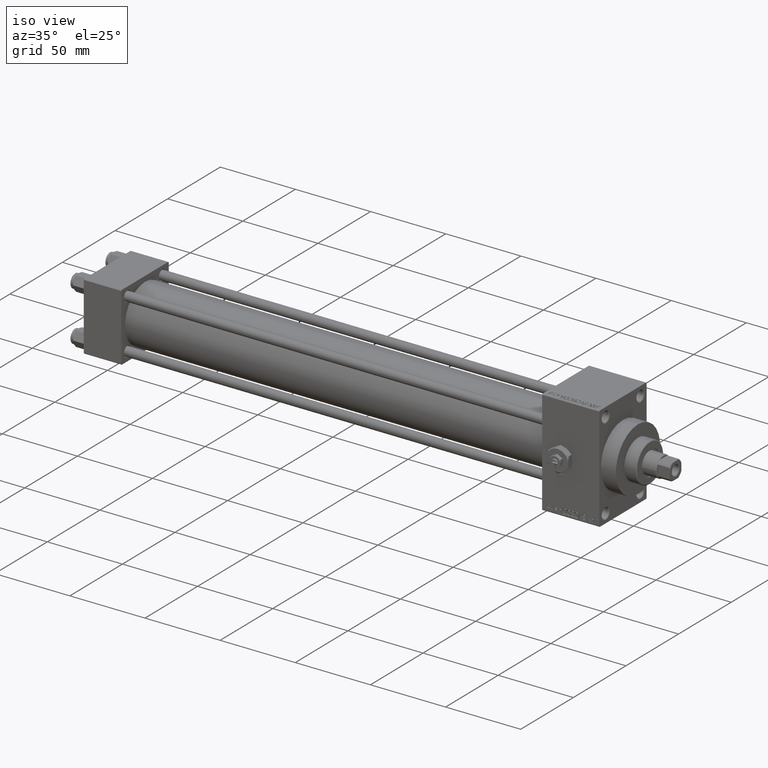
[diagram: clean part render]
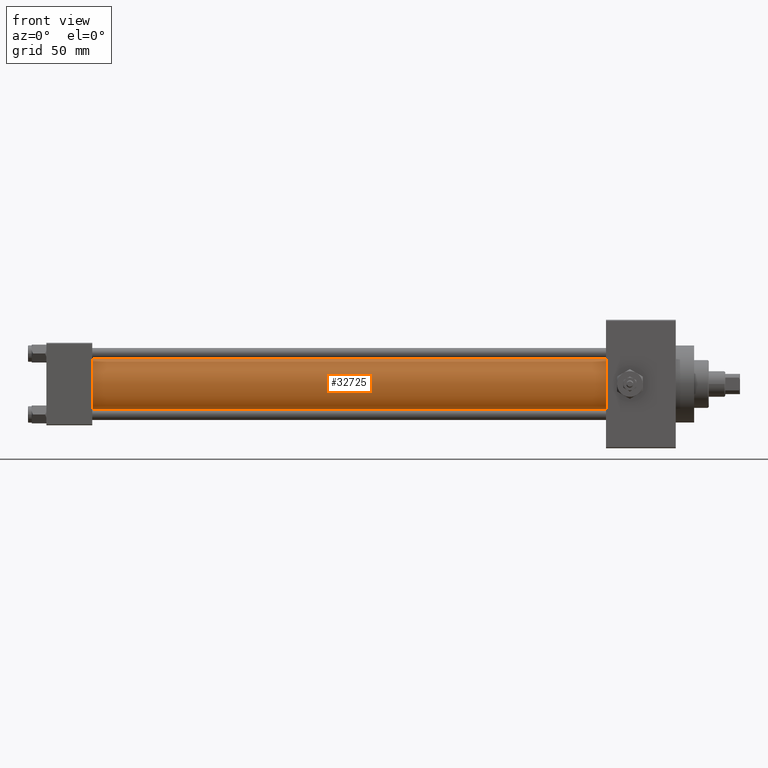
[diagram: tour spotlight — one face highlighted and labeled with its STEP entity id]
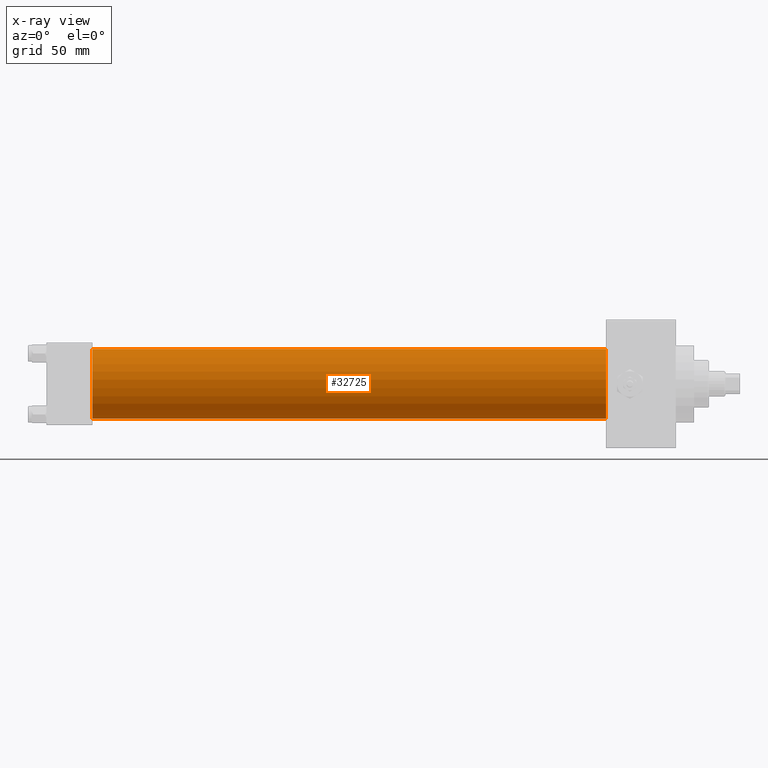
[diagram: x-ray of the same camera — body ghosted, this tour face saturated]
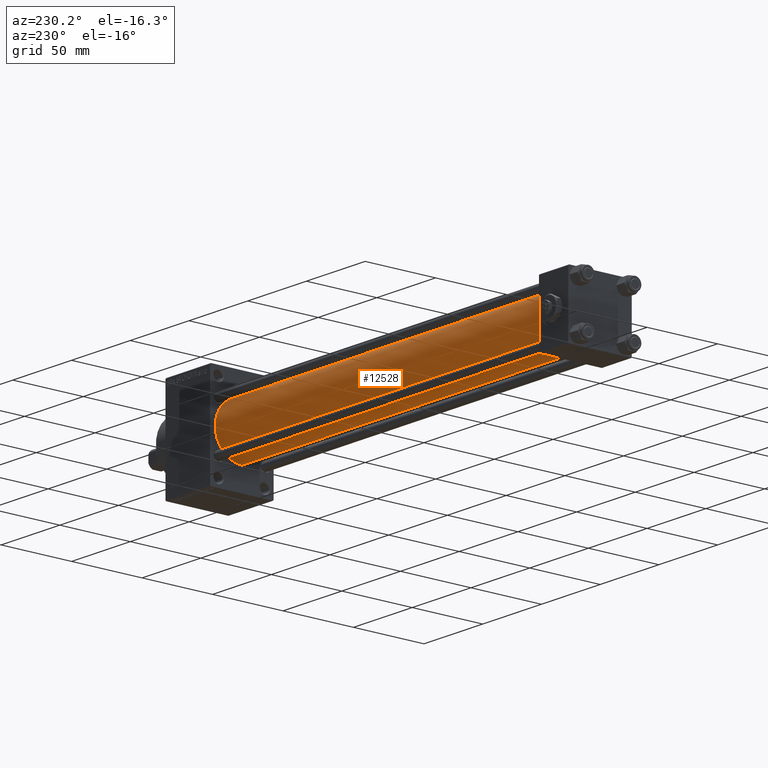
[diagram: tour spotlight — one face highlighted and labeled with its STEP entity id]
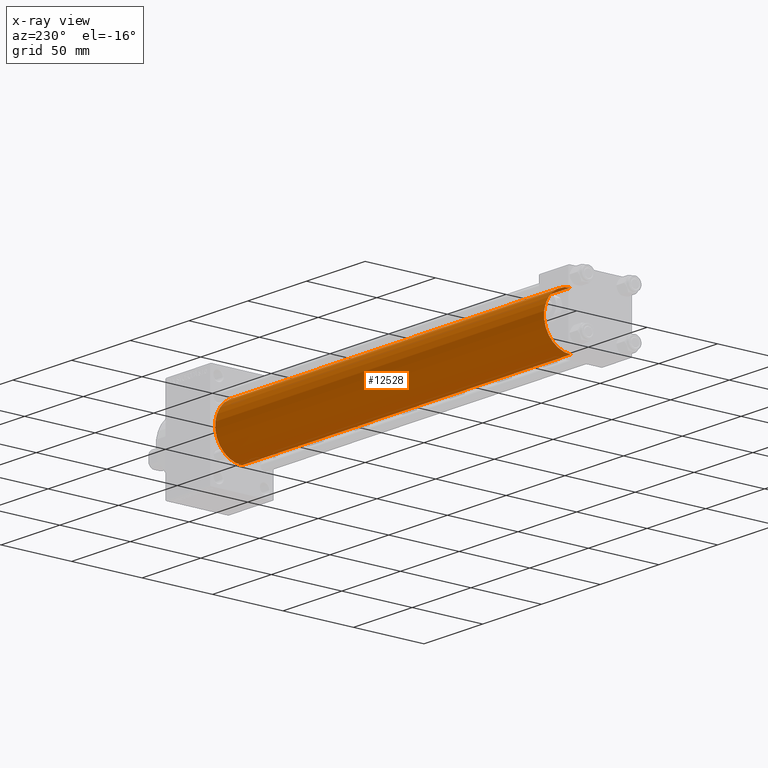
[diagram: x-ray of the same camera — body ghosted, this tour face saturated]
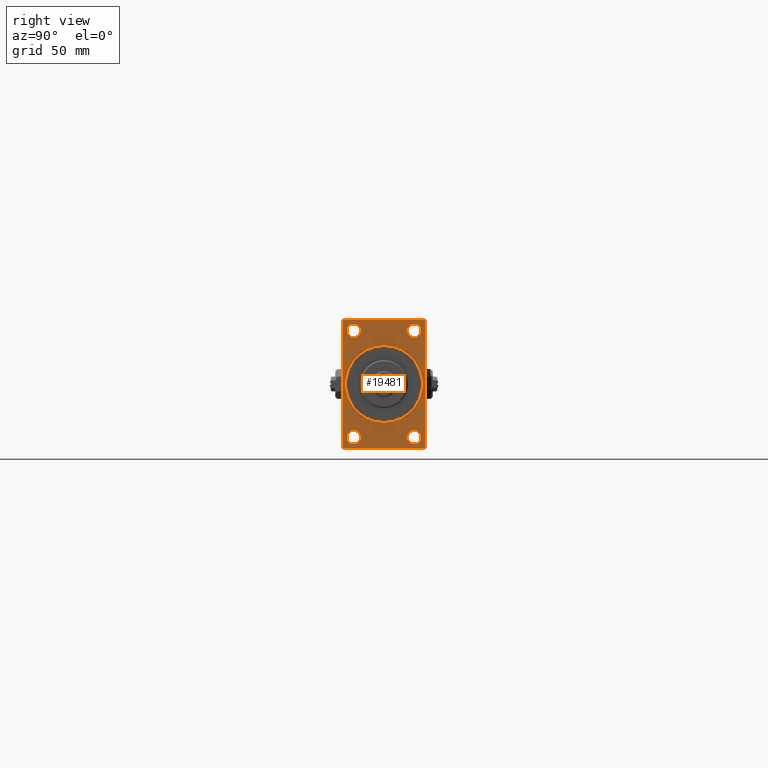
[diagram: tour spotlight — one face highlighted and labeled with its STEP entity id]
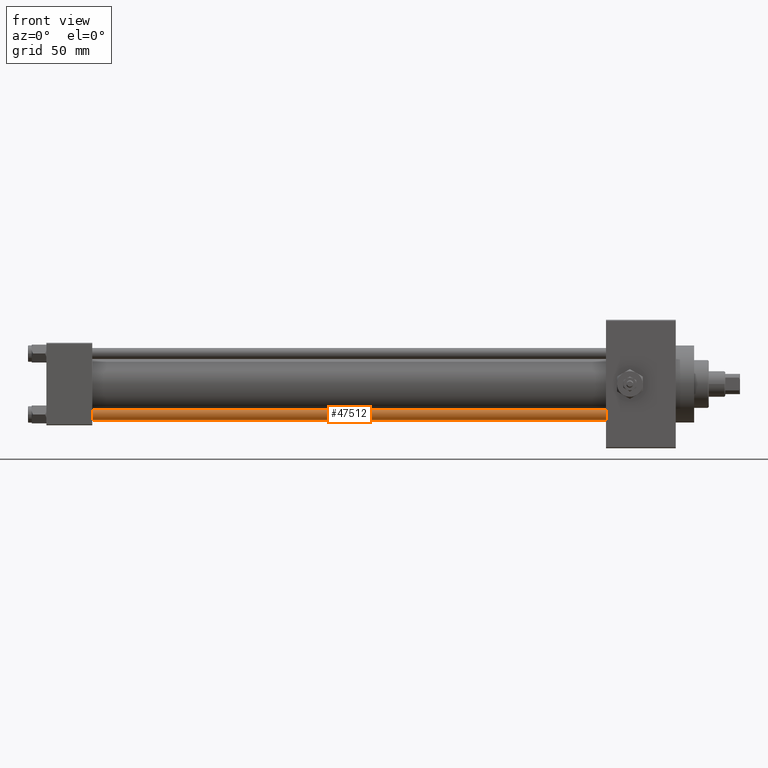
[diagram: tour spotlight — one face highlighted and labeled with its STEP entity id]
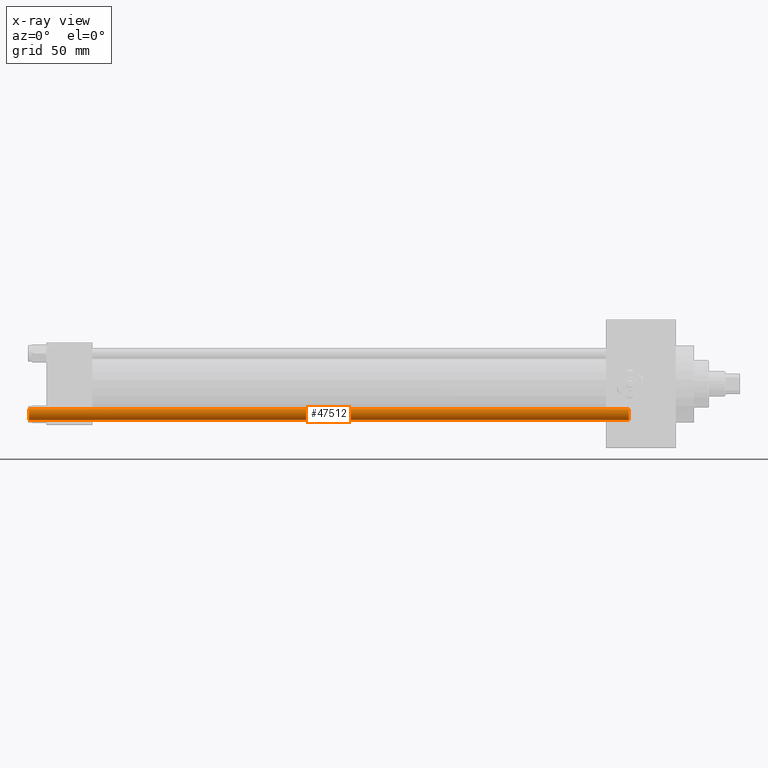
[diagram: x-ray of the same camera — body ghosted, this tour face saturated]
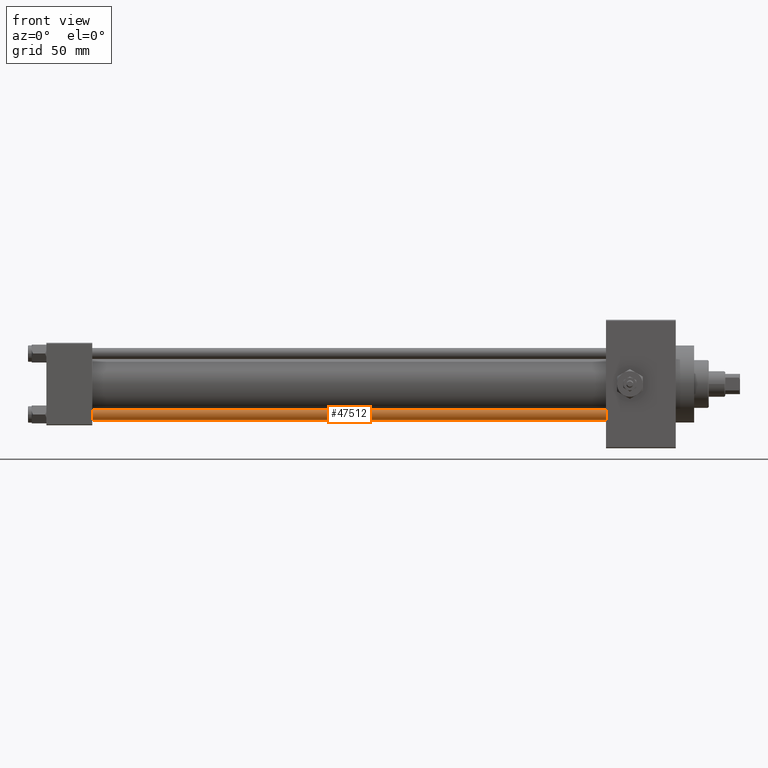
[diagram: tour spotlight — one face highlighted and labeled with its STEP entity id]
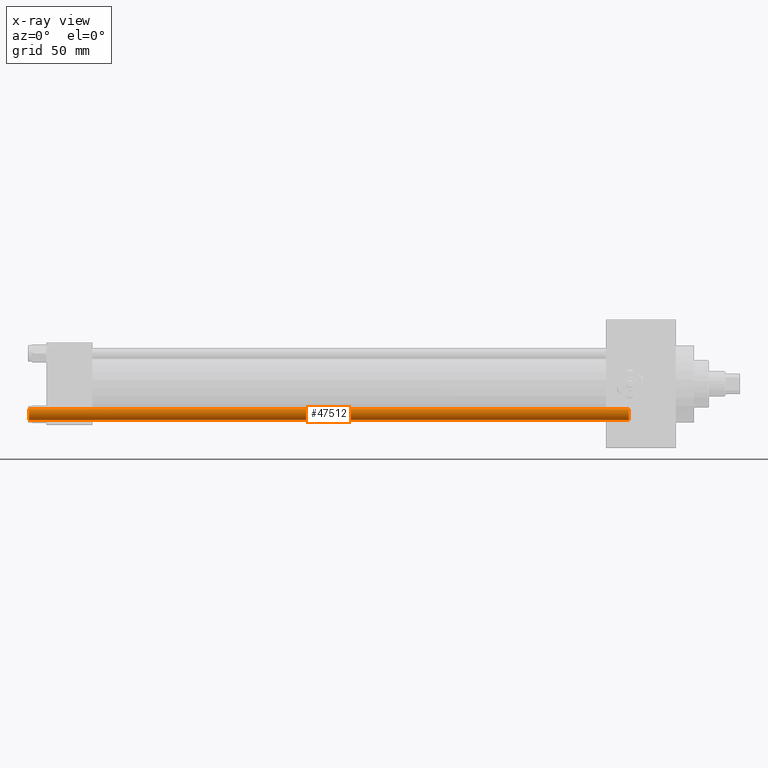
[diagram: x-ray of the same camera — body ghosted, this tour face saturated]
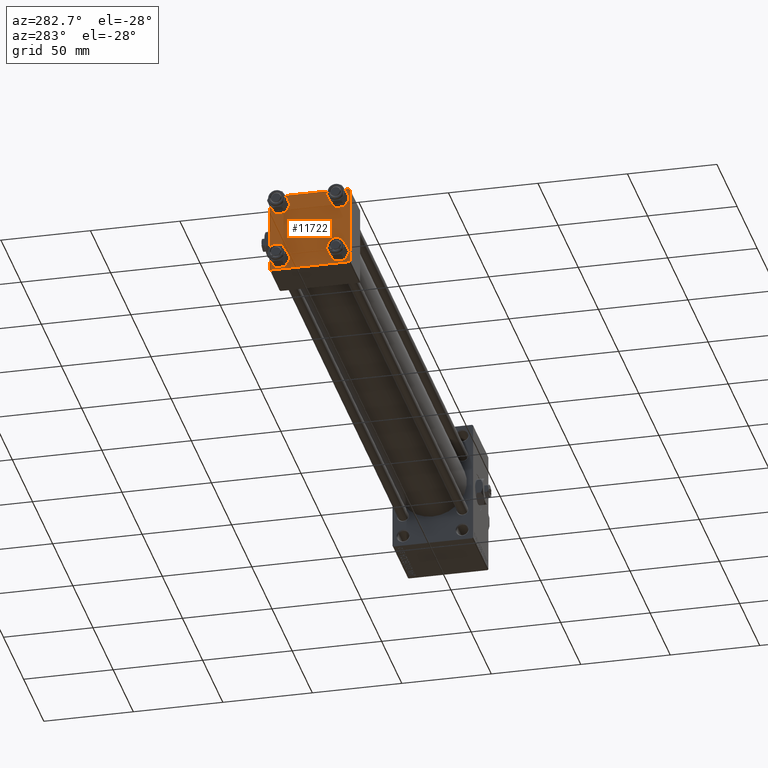
[diagram: tour spotlight — one face highlighted and labeled with its STEP entity id]
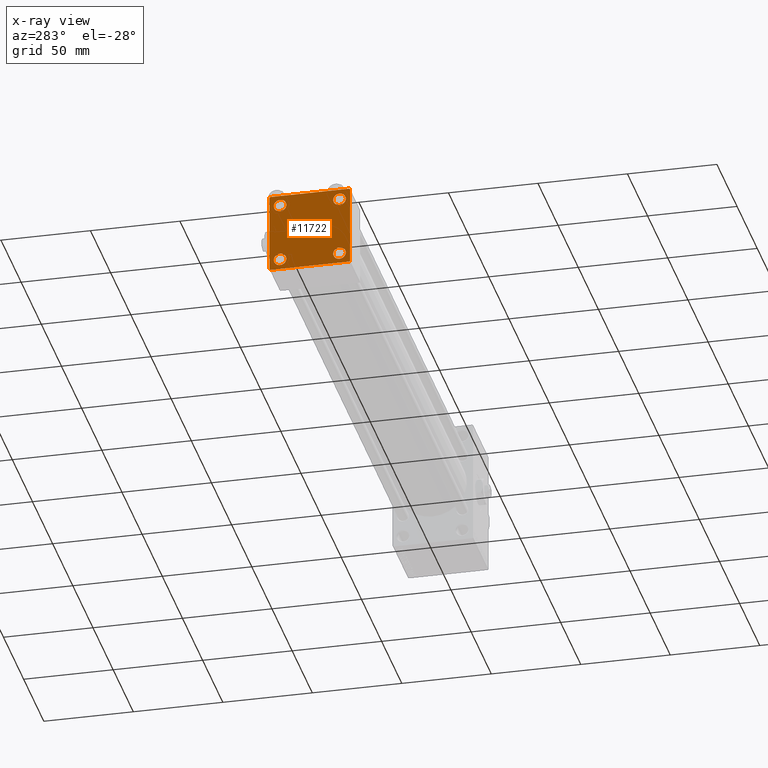
[diagram: x-ray of the same camera — body ghosted, this tour face saturated]
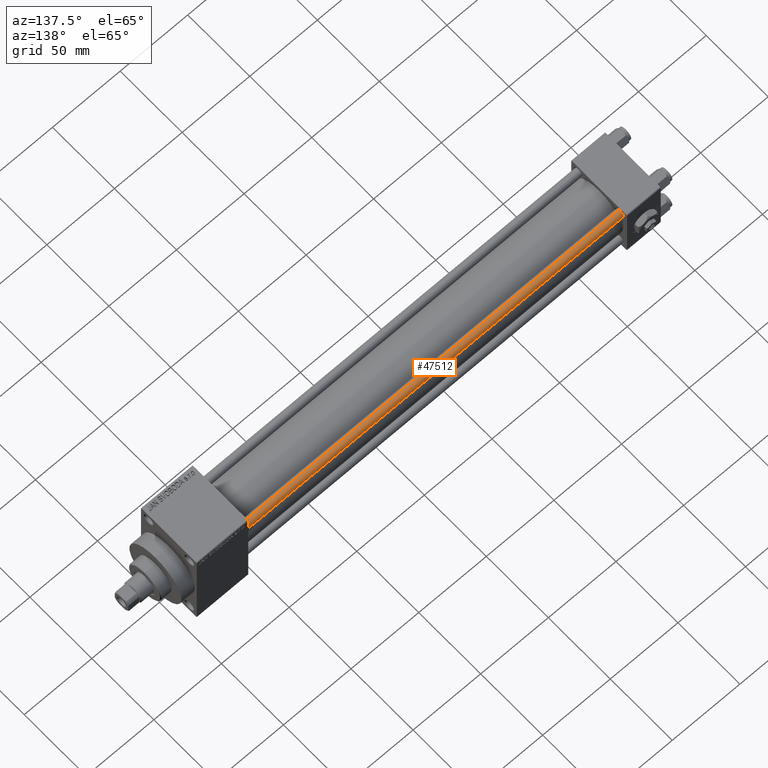
[diagram: tour spotlight — one face highlighted and labeled with its STEP entity id]
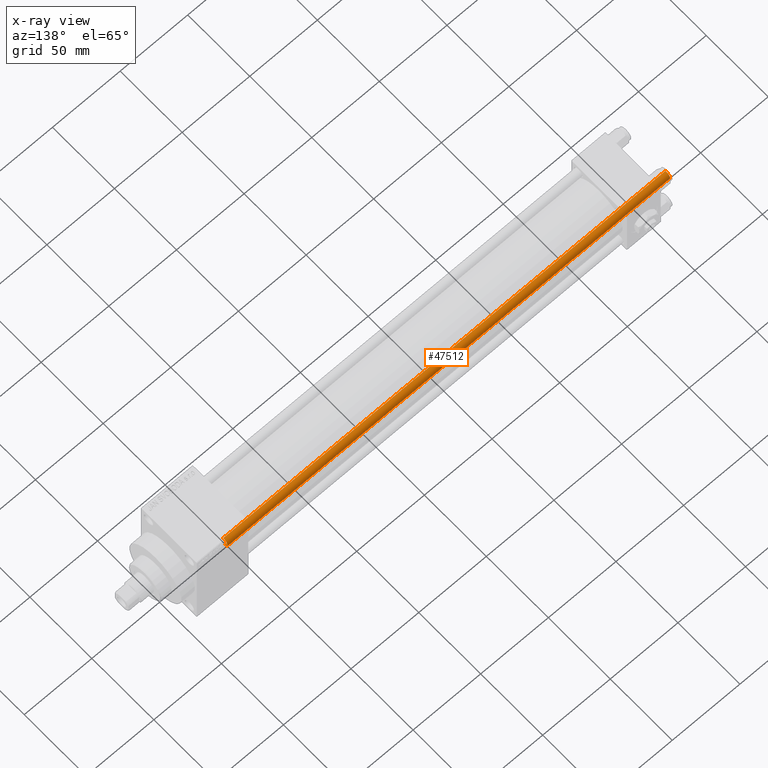
[diagram: x-ray of the same camera — body ghosted, this tour face saturated]
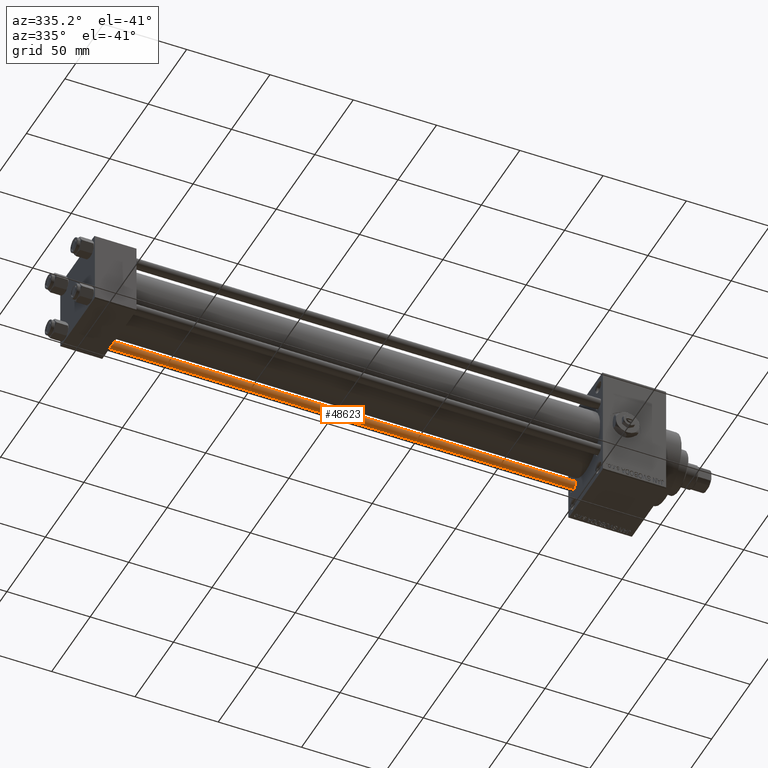
[diagram: tour spotlight — one face highlighted and labeled with its STEP entity id]
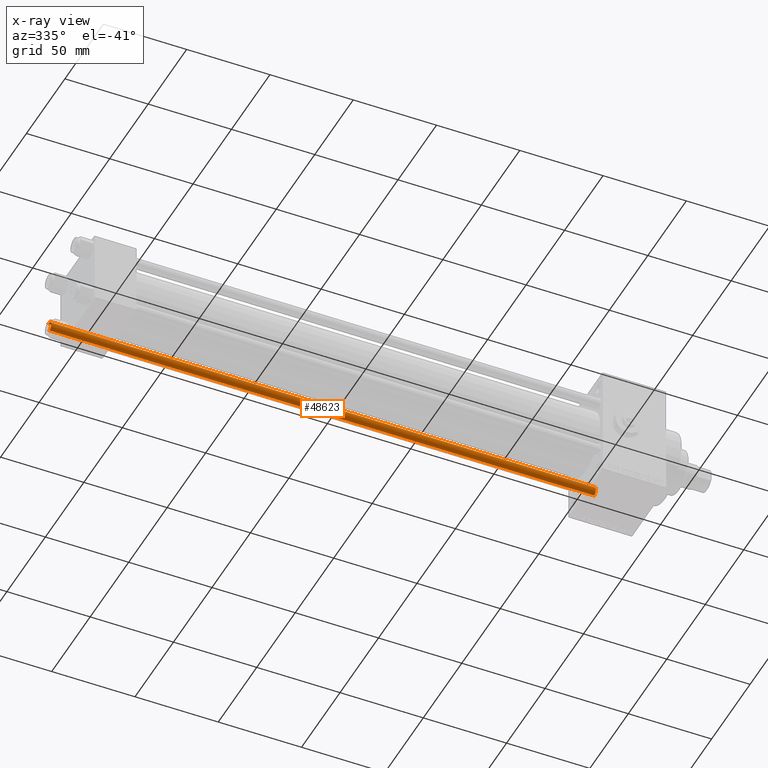
[diagram: x-ray of the same camera — body ghosted, this tour face saturated]
A machine part: a face-by-face anatomy tour. The part has 1187 B-rep faces; the first image is the clean iso view, then the 8 largest visible faces are spotlighted one at a time (largest first), each with its STEP entity span.

Face 1 — front view, entity #32725. An x-ray twin of the same camera follows (body ghosted, this face saturated) — the face is partly hidden behind the body. In plain terms, the highlighted cylindrical surface (edge-blend (fillet) strip) has radius 19 mm, axis along (-1, -0, -0).
Definition (entity closure, byte-faithful):
#694 = DIRECTION ( 'NONE',  ( 1.000000000000000000, 0.000000000000000000, 0.000000000000000000 ) ) ;
#1963 = DIRECTION ( 'NONE',  ( 0.000000000000000000, 0.000000000000000000, 1.000000000000000000 ) ) ;
#2403 = DIRECTION ( 'NONE',  ( 1.000000000000000000, -0.000000000000000000, 0.000000000000000000 ) ) ;
#3237 = EDGE_CURVE ( 'NONE', #39846, #39928, #31404, .T. ) ;
#6050 = VECTOR ( 'NONE', #23933, 1000.000000000000000 ) ;
#7245 = LINE ( 'NONE', #10673, #9520 ) ;
#7747 = ORIENTED_EDGE ( 'NONE', *, *, #15088, .F. ) ;
#8526 = AXIS2_PLACEMENT_3D ( 'NONE', #30652, #694, #8779 ) ;
#8779 = DIRECTION ( 'NONE',  ( 0.000000000000000000, 0.000000000000000000, -1.000000000000000000 ) ) ;
#8835 = FACE_OUTER_BOUND ( 'NONE', #46988, .T. ) ;
#9520 = VECTOR ( 'NONE', #25197, 1000.000000000000000 ) ;
#9562 = CARTESIAN_POINT ( 'NONE',  ( 305.0000000000000568, -2.602085213965210642E-15, 0.000000000000000000 ) ) ;
#9920 = LINE ( 'NONE', #35476, #6050 ) ;
#10673 = CARTESIAN_POINT ( 'NONE',  ( 305.0000000000000568, -2.752562955852396712E-16, -19.00000000000000000 ) ) ;
#15088 = EDGE_CURVE ( 'NONE', #35049, #39928, #7245, .T. ) ;
#17376 = DIRECTION ( 'NONE',  ( 0.000000000000000000, 0.000000000000000000, 1.000000000000000000 ) ) ;
#18401 = VERTEX_POINT ( 'NONE', #42076 ) ;
#19656 = DIRECTION ( 'NONE',  ( -1.000000000000000000, -0.000000000000000000, -0.000000000000000000 ) ) ;
#22654 = CIRCLE ( 'NONE', #8526, 19.00000000000000000 ) ;
#23157 = CARTESIAN_POINT ( 'NONE',  ( 25.00000000000002132, -2.602085213965210642E-15, 19.00000000000000000 ) ) ;
#23933 = DIRECTION ( 'NONE',  ( -1.000000000000000000, -0.000000000000000000, -0.000000000000000000 ) ) ;
#25197 = DIRECTION ( 'NONE',  ( -1.000000000000000000, -0.000000000000000000, -0.000000000000000000 ) ) ;
#30529 = ORIENTED_EDGE ( 'NONE', *, *, #35661, .F. ) ;
#30652 = CARTESIAN_POINT ( 'NONE',  ( 305.0000000000000568, -2.602085213965210642E-15, 0.000000000000000000 ) ) ;
#31404 = CIRCLE ( 'NONE', #32219, 19.00000000000000000 ) ;
#31985 = CARTESIAN_POINT ( 'NONE',  ( 25.00000000000002132, -2.752562955852396712E-16, -19.00000000000000000 ) ) ;
#32163 = EDGE_CURVE ( 'NONE', #18401, #39846, #9920, .T. ) ;
#32219 = AXIS2_PLACEMENT_3D ( 'NONE', #36036, #2403, #17376 ) ;
#32725 = ADVANCED_FACE ( 'NONE', ( #8835 ), #35106, .T. ) ;
#33985 = ORIENTED_EDGE ( 'NONE', *, *, #32163, .T. ) ;
#35049 = VERTEX_POINT ( 'NONE', #40937 ) ;
#35106 = CYLINDRICAL_SURFACE ( 'NONE', #47649, 19.00000000000000000 ) ;
#35476 = CARTESIAN_POINT ( 'NONE',  ( 305.0000000000000568, -2.602085213965210642E-15, 19.00000000000000000 ) ) ;
#35661 = EDGE_CURVE ( 'NONE', #18401, #35049, #22654, .T. ) ;
#36036 = CARTESIAN_POINT ( 'NONE',  ( 25.00000000000002132, -2.602085213965210642E-15, 0.000000000000000000 ) ) ;
#38311 = ORIENTED_EDGE ( 'NONE', *, *, #3237, .T. ) ;
#39846 = VERTEX_POINT ( 'NONE', #23157 ) ;
#39928 = VERTEX_POINT ( 'NONE', #31985 ) ;
#40937 = CARTESIAN_POINT ( 'NONE',  ( 305.0000000000000568, -2.752562955852396712E-16, -19.00000000000000000 ) ) ;
#42076 = CARTESIAN_POINT ( 'NONE',  ( 305.0000000000000568, -2.602085213965210642E-15, 19.00000000000000000 ) ) ;
#46988 = EDGE_LOOP ( 'NONE', ( #7747, #30529, #33985, #38311 ) ) ;
#47649 = AXIS2_PLACEMENT_3D ( 'NONE', #9562, #19656, #1963 ) ;

Face 2 — auxiliary view, entity #12528. An x-ray twin of the same camera follows (body ghosted, this face saturated) — the face is partly hidden behind the body. In plain terms, the highlighted cylindrical surface (edge-blend (fillet) strip) has radius 19 mm, axis along (-1, -0, -0).
Definition (entity closure, byte-faithful):
#671 = CIRCLE ( 'NONE', #36745, 19.00000000000000000 ) ;
#1087 = ORIENTED_EDGE ( 'NONE', *, *, #42976, .T. ) ;
#3450 = FACE_OUTER_BOUND ( 'NONE', #6060, .T. ) ;
#4730 = AXIS2_PLACEMENT_3D ( 'NONE', #44468, #10795, #41506 ) ;
#6050 = VECTOR ( 'NONE', #23933, 1000.000000000000000 ) ;
#6060 = EDGE_LOOP ( 'NONE', ( #48203, #32821, #1087, #41256 ) ) ;
#7245 = LINE ( 'NONE', #10673, #9520 ) ;
#7304 = EDGE_CURVE ( 'NONE', #35049, #18401, #32979, .T. ) ;
#9520 = VECTOR ( 'NONE', #25197, 1000.000000000000000 ) ;
#9920 = LINE ( 'NONE', #35476, #6050 ) ;
#10673 = CARTESIAN_POINT ( 'NONE',  ( 305.0000000000000568, -2.752562955852396712E-16, -19.00000000000000000 ) ) ;
#10795 = DIRECTION ( 'NONE',  ( -1.000000000000000000, -0.000000000000000000, -0.000000000000000000 ) ) ;
#12528 = ADVANCED_FACE ( 'NONE', ( #3450 ), #44715, .T. ) ;
#13374 = CARTESIAN_POINT ( 'NONE',  ( 305.0000000000000568, -2.602085213965210642E-15, 0.000000000000000000 ) ) ;
#15088 = EDGE_CURVE ( 'NONE', #35049, #39928, #7245, .T. ) ;
#18401 = VERTEX_POINT ( 'NONE', #42076 ) ;
#22690 = CARTESIAN_POINT ( 'NONE',  ( 25.00000000000002132, -2.602085213965210642E-15, 0.000000000000000000 ) ) ;
#23157 = CARTESIAN_POINT ( 'NONE',  ( 25.00000000000002132, -2.602085213965210642E-15, 19.00000000000000000 ) ) ;
#23933 = DIRECTION ( 'NONE',  ( -1.000000000000000000, -0.000000000000000000, -0.000000000000000000 ) ) ;
#25131 = AXIS2_PLACEMENT_3D ( 'NONE', #13374, #35474, #39659 ) ;
#25197 = DIRECTION ( 'NONE',  ( -1.000000000000000000, -0.000000000000000000, -0.000000000000000000 ) ) ;
#31985 = CARTESIAN_POINT ( 'NONE',  ( 25.00000000000002132, -2.752562955852396712E-16, -19.00000000000000000 ) ) ;
#32163 = EDGE_CURVE ( 'NONE', #18401, #39846, #9920, .T. ) ;
#32821 = ORIENTED_EDGE ( 'NONE', *, *, #15088, .T. ) ;
#32979 = CIRCLE ( 'NONE', #25131, 19.00000000000000000 ) ;
#33272 = DIRECTION ( 'NONE',  ( 0.000000000000000000, 0.000000000000000000, 1.000000000000000000 ) ) ;
#35049 = VERTEX_POINT ( 'NONE', #40937 ) ;
#35474 = DIRECTION ( 'NONE',  ( 1.000000000000000000, 0.000000000000000000, 0.000000000000000000 ) ) ;
#35476 = CARTESIAN_POINT ( 'NONE',  ( 305.0000000000000568, -2.602085213965210642E-15, 19.00000000000000000 ) ) ;
#36745 = AXIS2_PLACEMENT_3D ( 'NONE', #22690, #40643, #33272 ) ;
#39659 = DIRECTION ( 'NONE',  ( 0.000000000000000000, 0.000000000000000000, -1.000000000000000000 ) ) ;
#39846 = VERTEX_POINT ( 'NONE', #23157 ) ;
#39928 = VERTEX_POINT ( 'NONE', #31985 ) ;
#40643 = DIRECTION ( 'NONE',  ( 1.000000000000000000, -0.000000000000000000, 0.000000000000000000 ) ) ;
#40937 = CARTESIAN_POINT ( 'NONE',  ( 305.0000000000000568, -2.752562955852396712E-16, -19.00000000000000000 ) ) ;
#41256 = ORIENTED_EDGE ( 'NONE', *, *, #32163, .F. ) ;
#41506 = DIRECTION ( 'NONE',  ( 0.000000000000000000, 0.000000000000000000, 1.000000000000000000 ) ) ;
#42076 = CARTESIAN_POINT ( 'NONE',  ( 305.0000000000000568, -2.602085213965210642E-15, 19.00000000000000000 ) ) ;
#42976 = EDGE_CURVE ( 'NONE', #39928, #39846, #671, .T. ) ;
#44468 = CARTESIAN_POINT ( 'NONE',  ( 305.0000000000000568, -2.602085213965210642E-15, 0.000000000000000000 ) ) ;
#44715 = CYLINDRICAL_SURFACE ( 'NONE', #4730, 19.00000000000000000 ) ;
#48203 = ORIENTED_EDGE ( 'NONE', *, *, #7304, .F. ) ;

Face 3 — right view, entity #19481. In plain terms, the highlighted planar face has unit normal (-1, 0, 0).
Definition (entity closure, byte-faithful):
#880 = AXIS2_PLACEMENT_3D ( 'NONE', #35070, #38279, #45431 ) ;
#1050 = CIRCLE ( 'NONE', #45754, 3.750000000000027534 ) ;
#1054 = VERTEX_POINT ( 'NONE', #6635 ) ;
#1656 = ORIENTED_EDGE ( 'NONE', *, *, #45070, .T. ) ;
#1947 = CARTESIAN_POINT ( 'NONE',  ( 343.0000000000000000, 16.50000000000000000, -28.99999999999999289 ) ) ;
#3281 = LINE ( 'NONE', #48247, #39263 ) ;
#3961 = CARTESIAN_POINT ( 'NONE',  ( 343.0000000000000000, 16.50000000000000000, -32.75000000000002842 ) ) ;
#4307 = VERTEX_POINT ( 'NONE', #44204 ) ;
#4344 = PLANE ( 'NONE',  #46530 ) ;
#4588 = FACE_BOUND ( 'NONE', #19979, .T. ) ;
#4998 = DIRECTION ( 'NONE',  ( -1.000000000000000000, -0.000000000000000000, -0.000000000000000000 ) ) ;
#5166 = EDGE_LOOP ( 'NONE', ( #6978, #29847 ) ) ;
#5362 = AXIS2_PLACEMENT_3D ( 'NONE', #43029, #39093, #32210 ) ;
#5996 = ORIENTED_EDGE ( 'NONE', *, *, #46786, .F. ) ;
#6110 = VECTOR ( 'NONE', #41426, 1000.000000000000000 ) ;
#6347 = DIRECTION ( 'NONE',  ( 1.000000000000000000, 0.000000000000000000, 0.000000000000000000 ) ) ;
#6367 = DIRECTION ( 'NONE',  ( -1.000000000000000000, -0.000000000000000000, -0.000000000000000000 ) ) ;
#6635 = CARTESIAN_POINT ( 'NONE',  ( 343.0000000000000000, 0.000000000000000000, 21.00000000000000000 ) ) ;
#6670 = EDGE_CURVE ( 'NONE', #44421, #29078, #3281, .T. ) ;
#6978 = ORIENTED_EDGE ( 'NONE', *, *, #40744, .T. ) ;
#7195 = CARTESIAN_POINT ( 'NONE',  ( 343.0000000000000000, 22.49999999999999645, -34.49999999999995026 ) ) ;
#7797 = VERTEX_POINT ( 'NONE', #21638 ) ;
#8246 = LINE ( 'NONE', #34531, #6110 ) ;
#8498 = DIRECTION ( 'NONE',  ( -1.000000000000000000, 0.000000000000000000, -0.000000000000000000 ) ) ;
#8810 = ORIENTED_EDGE ( 'NONE', *, *, #36283, .F. ) ;
#9467 = ORIENTED_EDGE ( 'NONE', *, *, #6670, .T. ) ;
#10499 = DIRECTION ( 'NONE',  ( 0.000000000000000000, 0.000000000000000000, -1.000000000000000000 ) ) ;
#10677 = EDGE_CURVE ( 'NONE', #34449, #28813, #47377, .T. ) ;
#12016 = VERTEX_POINT ( 'NONE', #24944 ) ;
#12365 = AXIS2_PLACEMENT_3D ( 'NONE', #42402, #45362, #45123 ) ;
#12673 = VECTOR ( 'NONE', #22031, 1000.000000000000114 ) ;
#13208 = CIRCLE ( 'NONE', #5362, 21.00000000000000000 ) ;
#13535 = VERTEX_POINT ( 'NONE', #37068 ) ;
#14144 = EDGE_CURVE ( 'NONE', #33795, #14619, #48455, .T. ) ;
#14619 = VERTEX_POINT ( 'NONE', #26991 ) ;
#14653 = EDGE_CURVE ( 'NONE', #37790, #28742, #37755, .T. ) ;
#15156 = CARTESIAN_POINT ( 'NONE',  ( 343.0000000000000000, -16.50000000000000000, -32.75000000000002842 ) ) ;
#15270 = AXIS2_PLACEMENT_3D ( 'NONE', #48025, #44549, #29089 ) ;
#15486 = EDGE_LOOP ( 'NONE', ( #5996, #17238 ) ) ;
#15661 = ORIENTED_EDGE ( 'NONE', *, *, #41240, .T. ) ;
#15880 = FACE_BOUND ( 'NONE', #5166, .T. ) ;
#16364 = CARTESIAN_POINT ( 'NONE',  ( 343.0000000000000000, -22.50000000000000355, 34.49999999999995026 ) ) ;
#16876 = DIRECTION ( 'NONE',  ( 0.000000000000000000, 0.000000000000000000, 1.000000000000000000 ) ) ;
#17155 = VECTOR ( 'NONE', #28562, 1000.000000000000000 ) ;
#17238 = ORIENTED_EDGE ( 'NONE', *, *, #22148, .F. ) ;
#17254 = LINE ( 'NONE', #47253, #17155 ) ;
#17371 = EDGE_LOOP ( 'NONE', ( #23520, #26143, #21955, #42921, #8810, #15661, #9467, #1656 ) ) ;
#17624 = CARTESIAN_POINT ( 'NONE',  ( 343.0000000000000000, 0.000000000000000000, 0.000000000000000000 ) ) ;
#17736 = VERTEX_POINT ( 'NONE', #25234 ) ;
#17831 = DIRECTION ( 'NONE',  ( -1.000000000000000000, -0.000000000000000000, -0.000000000000000000 ) ) ;
#17885 = VECTOR ( 'NONE', #24213, 1000.000000000000114 ) ;
#18426 = AXIS2_PLACEMENT_3D ( 'NONE', #1947, #6367, #21336 ) ;
#18938 = EDGE_CURVE ( 'NONE', #17736, #4307, #1050, .T. ) ;
#19138 = AXIS2_PLACEMENT_3D ( 'NONE', #21038, #17831, #39233 ) ;
#19418 = VECTOR ( 'NONE', #29713, 1000.000000000000114 ) ;
#19481 = ADVANCED_FACE ( 'NONE', ( #45137, #38226, #4588, #15880, #19563, #23000 ), #4344, .F. ) ;
#19563 = FACE_BOUND ( 'NONE', #15486, .T. ) ;
#19979 = EDGE_LOOP ( 'NONE', ( #29624, #45104 ) ) ;
#20031 = VERTEX_POINT ( 'NONE', #27737 ) ;
#20109 = CARTESIAN_POINT ( 'NONE',  ( 343.0000000000000000, -22.50000000000000355, 34.49999999999995026 ) ) ;
#21038 = CARTESIAN_POINT ( 'NONE',  ( 343.0000000000000000, 16.50000000000000000, 29.00000000000000355 ) ) ;
#21189 = EDGE_CURVE ( 'NONE', #12016, #13535, #47389, .T. ) ;
#21336 = DIRECTION ( 'NONE',  ( 0.000000000000000000, 0.000000000000000000, 1.000000000000000000 ) ) ;
#21638 = CARTESIAN_POINT ( 'NONE',  ( 343.0000000000000000, 16.50000000000000000, -25.24999999999996447 ) ) ;
#21675 = CARTESIAN_POINT ( 'NONE',  ( 343.0000000000000000, -16.50000000000000000, -25.24999999999996447 ) ) ;
#21955 = ORIENTED_EDGE ( 'NONE', *, *, #40759, .F. ) ;
#22031 = DIRECTION ( 'NONE',  ( -0.000000000000000000, 0.7071067811865474617, 0.7071067811865474617 ) ) ;
#22148 = EDGE_CURVE ( 'NONE', #20031, #1054, #28613, .T. ) ;
#22362 = CARTESIAN_POINT ( 'NONE',  ( 343.0000000000000000, -21.99999999999993250, 35.00000000000000000 ) ) ;
#22394 = CARTESIAN_POINT ( 'NONE',  ( 343.0000000000000000, -22.50000000000000355, 35.00000000000000000 ) ) ;
#23000 = FACE_OUTER_BOUND ( 'NONE', #17371, .T. ) ;
#23276 = CIRCLE ( 'NONE', #28806, 3.750000000000027534 ) ;
#23483 = DIRECTION ( 'NONE',  ( -0.000000000000000000, -0.7071067811865474617, -0.7071067811865474617 ) ) ;
#23520 = ORIENTED_EDGE ( 'NONE', *, *, #14144, .T. ) ;
#23973 = EDGE_CURVE ( 'NONE', #39311, #7797, #27056, .T. ) ;
#24059 = EDGE_LOOP ( 'NONE', ( #26076, #30000 ) ) ;
#24213 = DIRECTION ( 'NONE',  ( 0.000000000000000000, 0.7071067811865474617, -0.7071067811865474617 ) ) ;
#24613 = VERTEX_POINT ( 'NONE', #24665 ) ;
#24665 = CARTESIAN_POINT ( 'NONE',  ( 343.0000000000000000, 22.49999999999999645, 34.50000000000000000 ) ) ;
#24944 = CARTESIAN_POINT ( 'NONE',  ( 343.0000000000000000, 16.50000000000000000, 32.75000000000003553 ) ) ;
#25234 = CARTESIAN_POINT ( 'NONE',  ( 343.0000000000000000, -16.50000000000000000, 25.24999999999998224 ) ) ;
#26014 = EDGE_LOOP ( 'NONE', ( #37435, #26176 ) ) ;
#26076 = ORIENTED_EDGE ( 'NONE', *, *, #14653, .T. ) ;
#26143 = ORIENTED_EDGE ( 'NONE', *, *, #37981, .T. ) ;
#26176 = ORIENTED_EDGE ( 'NONE', *, *, #31910, .T. ) ;
#26824 = EDGE_CURVE ( 'NONE', #7797, #39311, #27825, .T. ) ;
#26991 = CARTESIAN_POINT ( 'NONE',  ( 343.0000000000000000, -22.50000000000000355, -34.50000000000000000 ) ) ;
#27056 = CIRCLE ( 'NONE', #18426, 3.750000000000034639 ) ;
#27737 = CARTESIAN_POINT ( 'NONE',  ( 343.0000000000000000, 2.571758278209441661E-15, -21.00000000000000000 ) ) ;
#27796 = AXIS2_PLACEMENT_3D ( 'NONE', #17624, #6347, #10499 ) ;
#27825 = CIRCLE ( 'NONE', #15270, 3.750000000000034639 ) ;
#27936 = CARTESIAN_POINT ( 'NONE',  ( 343.0000000000000000, -16.50000000000000000, 29.00000000000000711 ) ) ;
#28294 = VERTEX_POINT ( 'NONE', #43639 ) ;
#28297 = VECTOR ( 'NONE', #30253, 1000.000000000000000 ) ;
#28562 = DIRECTION ( 'NONE',  ( 0.000000000000000000, 0.000000000000000000, -1.000000000000000000 ) ) ;
#28613 = CIRCLE ( 'NONE', #27796, 21.00000000000000000 ) ;
#28742 = VERTEX_POINT ( 'NONE', #21675 ) ;
#28806 = AXIS2_PLACEMENT_3D ( 'NONE', #27936, #42918, #16876 ) ;
#28813 = VERTEX_POINT ( 'NONE', #7195 ) ;
#28829 = DIRECTION ( 'NONE',  ( 0.000000000000000000, -1.000000000000000000, 0.000000000000000000 ) ) ;
#29078 = VERTEX_POINT ( 'NONE', #22362 ) ;
#29089 = DIRECTION ( 'NONE',  ( 0.000000000000000000, 0.000000000000000000, 1.000000000000000000 ) ) ;
#29403 = CARTESIAN_POINT ( 'NONE',  ( 343.0000000000000000, 22.49999999999999645, -34.49999999999995026 ) ) ;
#29624 = ORIENTED_EDGE ( 'NONE', *, *, #23973, .T. ) ;
#29713 = DIRECTION ( 'NONE',  ( 0.000000000000000000, -0.7071067811865474617, 0.7071067811865474617 ) ) ;
#29847 = ORIENTED_EDGE ( 'NONE', *, *, #21189, .T. ) ;
#30000 = ORIENTED_EDGE ( 'NONE', *, *, #48183, .T. ) ;
#30202 = LINE ( 'NONE', #40531, #19418 ) ;
#30253 = DIRECTION ( 'NONE',  ( 0.000000000000000000, 0.000000000000000000, -1.000000000000000000 ) ) ;
#30534 = DIRECTION ( 'NONE',  ( 0.000000000000000000, 0.000000000000000000, 1.000000000000000000 ) ) ;
#31093 = LINE ( 'NONE', #16364, #34351 ) ;
#31910 = EDGE_CURVE ( 'NONE', #4307, #17736, #23276, .T. ) ;
#32210 = DIRECTION ( 'NONE',  ( 0.000000000000000000, 0.000000000000000000, -1.000000000000000000 ) ) ;
#33795 = VERTEX_POINT ( 'NONE', #20109 ) ;
#34351 = VECTOR ( 'NONE', #23483, 1000.000000000000114 ) ;
#34449 = VERTEX_POINT ( 'NONE', #36855 ) ;
#34531 = CARTESIAN_POINT ( 'NONE',  ( 343.0000000000000000, 22.49999999999999645, -35.00000000000000000 ) ) ;
#34546 = CARTESIAN_POINT ( 'NONE',  ( 343.0000000000000000, 0.000000000000000000, 0.000000000000000000 ) ) ;
#34706 = CARTESIAN_POINT ( 'NONE',  ( 343.0000000000000000, -16.50000000000000000, -28.99999999999999289 ) ) ;
#35070 = CARTESIAN_POINT ( 'NONE',  ( 343.0000000000000000, -16.50000000000000000, -28.99999999999999289 ) ) ;
#35246 = DIRECTION ( 'NONE',  ( -1.000000000000000000, -0.000000000000000000, -0.000000000000000000 ) ) ;
#35997 = LINE ( 'NONE', #38959, #17885 ) ;
#36118 = CARTESIAN_POINT ( 'NONE',  ( 343.0000000000000000, 21.99999999999999645, 35.00000000000000000 ) ) ;
#36283 = EDGE_CURVE ( 'NONE', #24613, #28813, #17254, .T. ) ;
#36855 = CARTESIAN_POINT ( 'NONE',  ( 343.0000000000000000, 21.99999999999993960, -35.00000000000000000 ) ) ;
#37068 = CARTESIAN_POINT ( 'NONE',  ( 343.0000000000000000, 16.50000000000000000, 25.24999999999997513 ) ) ;
#37435 = ORIENTED_EDGE ( 'NONE', *, *, #18938, .T. ) ;
#37755 = CIRCLE ( 'NONE', #880, 3.750000000000034639 ) ;
#37790 = VERTEX_POINT ( 'NONE', #15156 ) ;
#37981 = EDGE_CURVE ( 'NONE', #14619, #28294, #35997, .T. ) ;
#38226 = FACE_BOUND ( 'NONE', #24059, .T. ) ;
#38279 = DIRECTION ( 'NONE',  ( -1.000000000000000000, -0.000000000000000000, -0.000000000000000000 ) ) ;
#38959 = CARTESIAN_POINT ( 'NONE',  ( 343.0000000000000000, -22.00000000000000355, -35.00000000000000000 ) ) ;
#39093 = DIRECTION ( 'NONE',  ( 1.000000000000000000, 0.000000000000000000, 0.000000000000000000 ) ) ;
#39233 = DIRECTION ( 'NONE',  ( 0.000000000000000000, 0.000000000000000000, 1.000000000000000000 ) ) ;
#39263 = VECTOR ( 'NONE', #28829, 1000.000000000000000 ) ;
#39311 = VERTEX_POINT ( 'NONE', #3961 ) ;
#40531 = CARTESIAN_POINT ( 'NONE',  ( 343.0000000000000000, 21.99999999999999645, 35.00000000000000000 ) ) ;
#40744 = EDGE_CURVE ( 'NONE', #13535, #12016, #47708, .T. ) ;
#40759 = EDGE_CURVE ( 'NONE', #34449, #28294, #8246, .T. ) ;
#41240 = EDGE_CURVE ( 'NONE', #24613, #44421, #30202, .T. ) ;
#41426 = DIRECTION ( 'NONE',  ( 0.000000000000000000, -1.000000000000000000, 0.000000000000000000 ) ) ;
#41730 = DIRECTION ( 'NONE',  ( 0.000000000000000000, 0.000000000000000000, 1.000000000000000000 ) ) ;
#41967 = CARTESIAN_POINT ( 'NONE',  ( 343.0000000000000000, -16.50000000000000000, 29.00000000000000711 ) ) ;
#42402 = CARTESIAN_POINT ( 'NONE',  ( 343.0000000000000000, 16.50000000000000000, 29.00000000000000355 ) ) ;
#42918 = DIRECTION ( 'NONE',  ( -1.000000000000000000, -0.000000000000000000, -0.000000000000000000 ) ) ;
#42921 = ORIENTED_EDGE ( 'NONE', *, *, #10677, .T. ) ;
#43029 = CARTESIAN_POINT ( 'NONE',  ( 343.0000000000000000, 0.000000000000000000, 0.000000000000000000 ) ) ;
#43639 = CARTESIAN_POINT ( 'NONE',  ( 343.0000000000000000, -21.99999999999998934, -35.00000000000000000 ) ) ;
#44204 = CARTESIAN_POINT ( 'NONE',  ( 343.0000000000000000, -16.50000000000000000, 32.75000000000003553 ) ) ;
#44421 = VERTEX_POINT ( 'NONE', #36118 ) ;
#44549 = DIRECTION ( 'NONE',  ( -1.000000000000000000, -0.000000000000000000, -0.000000000000000000 ) ) ;
#45070 = EDGE_CURVE ( 'NONE', #29078, #33795, #31093, .T. ) ;
#45104 = ORIENTED_EDGE ( 'NONE', *, *, #26824, .T. ) ;
#45123 = DIRECTION ( 'NONE',  ( 0.000000000000000000, 0.000000000000000000, 1.000000000000000000 ) ) ;
#45137 = FACE_BOUND ( 'NONE', #26014, .T. ) ;
#45362 = DIRECTION ( 'NONE',  ( -1.000000000000000000, -0.000000000000000000, -0.000000000000000000 ) ) ;
#45431 = DIRECTION ( 'NONE',  ( 0.000000000000000000, 0.000000000000000000, 1.000000000000000000 ) ) ;
#45754 = AXIS2_PLACEMENT_3D ( 'NONE', #41967, #35246, #41730 ) ;
#46530 = AXIS2_PLACEMENT_3D ( 'NONE', #34546, #8498, #46773 ) ;
#46773 = DIRECTION ( 'NONE',  ( -0.000000000000000000, 0.000000000000000000, 1.000000000000000000 ) ) ;
#46786 = EDGE_CURVE ( 'NONE', #1054, #20031, #13208, .T. ) ;
#47048 = CIRCLE ( 'NONE', #47820, 3.750000000000034639 ) ;
#47253 = CARTESIAN_POINT ( 'NONE',  ( 343.0000000000000000, 22.49999999999999645, 35.00000000000000000 ) ) ;
#47377 = LINE ( 'NONE', #29403, #12673 ) ;
#47389 = CIRCLE ( 'NONE', #19138, 3.750000000000031086 ) ;
#47708 = CIRCLE ( 'NONE', #12365, 3.750000000000031086 ) ;
#47820 = AXIS2_PLACEMENT_3D ( 'NONE', #34706, #4998, #30534 ) ;
#48025 = CARTESIAN_POINT ( 'NONE',  ( 343.0000000000000000, 16.50000000000000000, -28.99999999999999289 ) ) ;
#48183 = EDGE_CURVE ( 'NONE', #28742, #37790, #47048, .T. ) ;
#48247 = CARTESIAN_POINT ( 'NONE',  ( 343.0000000000000000, 22.49999999999999645, 35.00000000000000000 ) ) ;
#48455 = LINE ( 'NONE', #22394, #28297 ) ;

Face 4 — front view, entity #47512. An x-ray twin of the same camera follows (body ghosted, this face saturated) — the face is partly hidden behind the body. In plain terms, the highlighted cylindrical surface (edge-blend (fillet) strip) has radius 3 mm, axis along (1, 0, 0).
Definition (entity closure, byte-faithful):
#4956 = DIRECTION ( 'NONE',  ( -0.000000000000000000, -0.000000000000000000, -1.000000000000000000 ) ) ;
#6270 = CARTESIAN_POINT ( 'NONE',  ( 0.000000000000000000, 0.000000000000000000, 0.5000000000000559552 ) ) ;
#7084 = VERTEX_POINT ( 'NONE', #17896 ) ;
#7998 = VERTEX_POINT ( 'NONE', #22503 ) ;
#8447 = DIRECTION ( 'NONE',  ( 0.000000000000000000, 0.000000000000000000, -1.000000000000000000 ) ) ;
#11629 = CIRCLE ( 'NONE', #42254, 3.000000000000000444 ) ;
#11896 = CARTESIAN_POINT ( 'NONE',  ( 0.000000000000000000, 0.000000000000000000, 327.5000000000000000 ) ) ;
#12674 = DIRECTION ( 'NONE',  ( -0.000000000000000000, -0.000000000000000000, -1.000000000000000000 ) ) ;
#12712 = EDGE_CURVE ( 'NONE', #22839, #7998, #25495, .T. ) ;
#13875 = ORIENTED_EDGE ( 'NONE', *, *, #46339, .T. ) ;
#14737 = CARTESIAN_POINT ( 'NONE',  ( 3.000000000000000444, 3.673940397442060361E-16, 327.5000000000000000 ) ) ;
#15458 = EDGE_LOOP ( 'NONE', ( #13875, #46103, #35161, #24779 ) ) ;
#15877 = LINE ( 'NONE', #20044, #36816 ) ;
#17896 = CARTESIAN_POINT ( 'NONE',  ( -3.000000000000000444, 0.000000000000000000, 0.5000000000000559552 ) ) ;
#20044 = CARTESIAN_POINT ( 'NONE',  ( -3.000000000000000444, 0.000000000000000000, 328.0000000000000000 ) ) ;
#20650 = CYLINDRICAL_SURFACE ( 'NONE', #44643, 3.000000000000000444 ) ;
#21323 = CARTESIAN_POINT ( 'NONE',  ( 3.000000000000000444, 3.673940397442060361E-16, 328.0000000000000000 ) ) ;
#22503 = CARTESIAN_POINT ( 'NONE',  ( 3.000000000000000444, 3.673940397442060361E-16, 0.5000000000000559552 ) ) ;
#22839 = VERTEX_POINT ( 'NONE', #14737 ) ;
#24222 = CIRCLE ( 'NONE', #36772, 3.000000000000000444 ) ;
#24779 = ORIENTED_EDGE ( 'NONE', *, *, #37874, .F. ) ;
#24903 = FACE_OUTER_BOUND ( 'NONE', #15458, .T. ) ;
#25495 = LINE ( 'NONE', #21323, #32984 ) ;
#26649 = DIRECTION ( 'NONE',  ( 1.000000000000000000, 0.000000000000000000, 0.000000000000000000 ) ) ;
#28626 = DIRECTION ( 'NONE',  ( -0.000000000000000000, -0.000000000000000000, 1.000000000000000000 ) ) ;
#32984 = VECTOR ( 'NONE', #44170, 1000.000000000000000 ) ;
#35161 = ORIENTED_EDGE ( 'NONE', *, *, #47862, .T. ) ;
#35628 = CARTESIAN_POINT ( 'NONE',  ( 0.000000000000000000, 0.000000000000000000, 328.0000000000000000 ) ) ;
#36772 = AXIS2_PLACEMENT_3D ( 'NONE', #6270, #28626, #39438 ) ;
#36816 = VECTOR ( 'NONE', #12674, 1000.000000000000000 ) ;
#37874 = EDGE_CURVE ( 'NONE', #38762, #7084, #15877, .T. ) ;
#38762 = VERTEX_POINT ( 'NONE', #44414 ) ;
#38838 = DIRECTION ( 'NONE',  ( -1.000000000000000000, 0.000000000000000000, 0.000000000000000000 ) ) ;
#39438 = DIRECTION ( 'NONE',  ( 1.000000000000000000, 0.000000000000000000, 0.000000000000000000 ) ) ;
#42254 = AXIS2_PLACEMENT_3D ( 'NONE', #11896, #8447, #26649 ) ;
#44170 = DIRECTION ( 'NONE',  ( -0.000000000000000000, -0.000000000000000000, -1.000000000000000000 ) ) ;
#44414 = CARTESIAN_POINT ( 'NONE',  ( -3.000000000000000444, 0.000000000000000000, 327.5000000000000000 ) ) ;
#44643 = AXIS2_PLACEMENT_3D ( 'NONE', #35628, #4956, #38838 ) ;
#46103 = ORIENTED_EDGE ( 'NONE', *, *, #12712, .T. ) ;
#46339 = EDGE_CURVE ( 'NONE', #38762, #22839, #11629, .T. ) ;
#47512 = ADVANCED_FACE ( 'NONE', ( #24903 ), #20650, .T. ) ;
#47862 = EDGE_CURVE ( 'NONE', #7998, #7084, #24222, .T. ) ;

Face 5 — front view, entity #47512. An x-ray twin of the same camera follows (body ghosted, this face saturated) — the face is partly hidden behind the body. In plain terms, the highlighted cylindrical surface (edge-blend (fillet) strip) has radius 3 mm, axis along (-1, 0, 0).
Definition (entity closure, byte-faithful):
#4956 = DIRECTION ( 'NONE',  ( -0.000000000000000000, -0.000000000000000000, -1.000000000000000000 ) ) ;
#6270 = CARTESIAN_POINT ( 'NONE',  ( 0.000000000000000000, 0.000000000000000000, 0.5000000000000559552 ) ) ;
#7084 = VERTEX_POINT ( 'NONE', #17896 ) ;
#7998 = VERTEX_POINT ( 'NONE', #22503 ) ;
#8447 = DIRECTION ( 'NONE',  ( 0.000000000000000000, 0.000000000000000000, -1.000000000000000000 ) ) ;
#11629 = CIRCLE ( 'NONE', #42254, 3.000000000000000444 ) ;
#11896 = CARTESIAN_POINT ( 'NONE',  ( 0.000000000000000000, 0.000000000000000000, 327.5000000000000000 ) ) ;
#12674 = DIRECTION ( 'NONE',  ( -0.000000000000000000, -0.000000000000000000, -1.000000000000000000 ) ) ;
#12712 = EDGE_CURVE ( 'NONE', #22839, #7998, #25495, .T. ) ;
#13875 = ORIENTED_EDGE ( 'NONE', *, *, #46339, .T. ) ;
#14737 = CARTESIAN_POINT ( 'NONE',  ( 3.000000000000000444, 3.673940397442060361E-16, 327.5000000000000000 ) ) ;
#15458 = EDGE_LOOP ( 'NONE', ( #13875, #46103, #35161, #24779 ) ) ;
#15877 = LINE ( 'NONE', #20044, #36816 ) ;
#17896 = CARTESIAN_POINT ( 'NONE',  ( -3.000000000000000444, 0.000000000000000000, 0.5000000000000559552 ) ) ;
#20044 = CARTESIAN_POINT ( 'NONE',  ( -3.000000000000000444, 0.000000000000000000, 328.0000000000000000 ) ) ;
#20650 = CYLINDRICAL_SURFACE ( 'NONE', #44643, 3.000000000000000444 ) ;
#21323 = CARTESIAN_POINT ( 'NONE',  ( 3.000000000000000444, 3.673940397442060361E-16, 328.0000000000000000 ) ) ;
#22503 = CARTESIAN_POINT ( 'NONE',  ( 3.000000000000000444, 3.673940397442060361E-16, 0.5000000000000559552 ) ) ;
#22839 = VERTEX_POINT ( 'NONE', #14737 ) ;
#24222 = CIRCLE ( 'NONE', #36772, 3.000000000000000444 ) ;
#24779 = ORIENTED_EDGE ( 'NONE', *, *, #37874, .F. ) ;
#24903 = FACE_OUTER_BOUND ( 'NONE', #15458, .T. ) ;
#25495 = LINE ( 'NONE', #21323, #32984 ) ;
#26649 = DIRECTION ( 'NONE',  ( 1.000000000000000000, 0.000000000000000000, 0.000000000000000000 ) ) ;
#28626 = DIRECTION ( 'NONE',  ( -0.000000000000000000, -0.000000000000000000, 1.000000000000000000 ) ) ;
#32984 = VECTOR ( 'NONE', #44170, 1000.000000000000000 ) ;
#35161 = ORIENTED_EDGE ( 'NONE', *, *, #47862, .T. ) ;
#35628 = CARTESIAN_POINT ( 'NONE',  ( 0.000000000000000000, 0.000000000000000000, 328.0000000000000000 ) ) ;
#36772 = AXIS2_PLACEMENT_3D ( 'NONE', #6270, #28626, #39438 ) ;
#36816 = VECTOR ( 'NONE', #12674, 1000.000000000000000 ) ;
#37874 = EDGE_CURVE ( 'NONE', #38762, #7084, #15877, .T. ) ;
#38762 = VERTEX_POINT ( 'NONE', #44414 ) ;
#38838 = DIRECTION ( 'NONE',  ( -1.000000000000000000, 0.000000000000000000, 0.000000000000000000 ) ) ;
#39438 = DIRECTION ( 'NONE',  ( 1.000000000000000000, 0.000000000000000000, 0.000000000000000000 ) ) ;
#42254 = AXIS2_PLACEMENT_3D ( 'NONE', #11896, #8447, #26649 ) ;
#44170 = DIRECTION ( 'NONE',  ( -0.000000000000000000, -0.000000000000000000, -1.000000000000000000 ) ) ;
#44414 = CARTESIAN_POINT ( 'NONE',  ( -3.000000000000000444, 0.000000000000000000, 327.5000000000000000 ) ) ;
#44643 = AXIS2_PLACEMENT_3D ( 'NONE', #35628, #4956, #38838 ) ;
#46103 = ORIENTED_EDGE ( 'NONE', *, *, #12712, .T. ) ;
#46339 = EDGE_CURVE ( 'NONE', #38762, #22839, #11629, .T. ) ;
#47512 = ADVANCED_FACE ( 'NONE', ( #24903 ), #20650, .T. ) ;
#47862 = EDGE_CURVE ( 'NONE', #7998, #7084, #24222, .T. ) ;

Face 6 — auxiliary view, entity #11722. An x-ray twin of the same camera follows (body ghosted, this face saturated) — the face is partly hidden behind the body. In plain terms, the highlighted planar face has unit normal (-1, 0, 0).
Definition (entity closure, byte-faithful):
#32 = ORIENTED_EDGE ( 'NONE', *, *, #37447, .T. ) ;
#414 = CARTESIAN_POINT ( 'NONE',  ( 0.000000000000000000, 22.50000000000000000, 22.50000000000000355 ) ) ;
#420 = PLANE ( 'NONE',  #28448 ) ;
#713 = DIRECTION ( 'NONE',  ( 1.000000000000000000, -0.000000000000000000, 0.000000000000000000 ) ) ;
#873 = AXIS2_PLACEMENT_3D ( 'NONE', #26041, #713, #22100 ) ;
#897 = EDGE_CURVE ( 'NONE', #34960, #42293, #15032, .T. ) ;
#2050 = LINE ( 'NONE', #28578, #6215 ) ;
#2921 = ORIENTED_EDGE ( 'NONE', *, *, #38621, .T. ) ;
#3644 = EDGE_CURVE ( 'NONE', #31301, #47738, #41619, .T. ) ;
#3837 = CIRCLE ( 'NONE', #34396, 3.499999999999996003 ) ;
#3913 = CARTESIAN_POINT ( 'NONE',  ( 0.000000000000000000, 22.50000000000000000, -21.99999999999996803 ) ) ;
#4191 = EDGE_CURVE ( 'NONE', #14495, #47550, #36102, .T. ) ;
#4430 = ORIENTED_EDGE ( 'NONE', *, *, #40674, .F. ) ;
#4994 = DIRECTION ( 'NONE',  ( 0.000000000000000000, 0.000000000000000000, 1.000000000000000000 ) ) ;
#5006 = CARTESIAN_POINT ( 'NONE',  ( -0.000000000000000000, -22.24999999999984013, 22.25000000000015277 ) ) ;
#5202 = CARTESIAN_POINT ( 'NONE',  ( 0.000000000000000000, -16.59999999999999076, -16.60000000000000853 ) ) ;
#5717 = CARTESIAN_POINT ( 'NONE',  ( 0.000000000000000000, 21.99999999999999289, -22.49999999999999645 ) ) ;
#5857 = VERTEX_POINT ( 'NONE', #19269 ) ;
#5947 = CARTESIAN_POINT ( 'NONE',  ( 0.000000000000000000, -16.59999999999999076, 16.60000000000000853 ) ) ;
#6113 = VERTEX_POINT ( 'NONE', #19216 ) ;
#6215 = VECTOR ( 'NONE', #13341, 1000.000000000000000 ) ;
#7626 = CARTESIAN_POINT ( 'NONE',  ( 0.000000000000000000, 16.59999999999999787, 16.60000000000000497 ) ) ;
#7897 = DIRECTION ( 'NONE',  ( 0.000000000000000000, 0.000000000000000000, -1.000000000000000000 ) ) ;
#8490 = FACE_BOUND ( 'NONE', #46474, .T. ) ;
#8547 = VECTOR ( 'NONE', #47020, 1000.000000000000000 ) ;
#9138 = CARTESIAN_POINT ( 'NONE',  ( 0.000000000000000000, -16.59999999999999076, 16.60000000000000853 ) ) ;
#9291 = CARTESIAN_POINT ( 'NONE',  ( 0.000000000000000000, -16.59999999999999076, -16.60000000000000853 ) ) ;
#9355 = EDGE_CURVE ( 'NONE', #47550, #14495, #37752, .T. ) ;
#11135 = EDGE_CURVE ( 'NONE', #31865, #17117, #12115, .T. ) ;
#11323 = CARTESIAN_POINT ( 'NONE',  ( 0.000000000000000000, 22.50000000000000000, -22.49999999999999645 ) ) ;
#11338 = CARTESIAN_POINT ( 'NONE',  ( 0.000000000000000000, 22.50000000000000000, 22.50000000000000355 ) ) ;
#11490 = CARTESIAN_POINT ( 'NONE',  ( 0.000000000000000000, -22.50000000000000000, 22.00000000000000000 ) ) ;
#11722 = ADVANCED_FACE ( 'NONE', ( #19798, #11943, #8490, #16117, #26690 ), #420, .T. ) ;
#11943 = FACE_BOUND ( 'NONE', #41932, .T. ) ;
#12115 = LINE ( 'NONE', #5006, #38595 ) ;
#12581 = CARTESIAN_POINT ( 'NONE',  ( 0.000000000000000000, 22.24999999999999645, 22.24999999999999645 ) ) ;
#13143 = VECTOR ( 'NONE', #26927, 1000.000000000000000 ) ;
#13341 = DIRECTION ( 'NONE',  ( 0.000000000000000000, -0.7071067811865426878, 0.7071067811865524577 ) ) ;
#13520 = CARTESIAN_POINT ( 'NONE',  ( 0.000000000000000000, 16.59999999999999787, -20.10000000000000142 ) ) ;
#14092 = VERTEX_POINT ( 'NONE', #28804 ) ;
#14308 = ORIENTED_EDGE ( 'NONE', *, *, #897, .T. ) ;
#14495 = VERTEX_POINT ( 'NONE', #13520 ) ;
#15032 = LINE ( 'NONE', #11338, #38353 ) ;
#15382 = CARTESIAN_POINT ( 'NONE',  ( 0.000000000000000000, 0.000000000000000000, 0.000000000000000000 ) ) ;
#16059 = EDGE_CURVE ( 'NONE', #39113, #5857, #40335, .T. ) ;
#16117 = FACE_BOUND ( 'NONE', #24930, .T. ) ;
#16193 = DIRECTION ( 'NONE',  ( 1.000000000000000000, -0.000000000000000000, 0.000000000000000000 ) ) ;
#16244 = VECTOR ( 'NONE', #34930, 1000.000000000000114 ) ;
#16494 = DIRECTION ( 'NONE',  ( -0.000000000000000000, -0.7071067811865426878, -0.7071067811865524577 ) ) ;
#17117 = VERTEX_POINT ( 'NONE', #46306 ) ;
#17253 = CARTESIAN_POINT ( 'NONE',  ( 0.000000000000000000, -22.50000000000000000, -21.99999999999997158 ) ) ;
#19216 = CARTESIAN_POINT ( 'NONE',  ( 0.000000000000000000, -16.59999999999999076, -20.10000000000000497 ) ) ;
#19269 = CARTESIAN_POINT ( 'NONE',  ( 0.000000000000000000, -21.99999999999997158, -22.50000000000000711 ) ) ;
#19312 = DIRECTION ( 'NONE',  ( -0.000000000000000000, 0.000000000000000000, 1.000000000000000000 ) ) ;
#19440 = ORIENTED_EDGE ( 'NONE', *, *, #26329, .T. ) ;
#19533 = AXIS2_PLACEMENT_3D ( 'NONE', #36836, #37569, #30204 ) ;
#19798 = FACE_BOUND ( 'NONE', #34145, .T. ) ;
#20437 = LINE ( 'NONE', #12581, #16244 ) ;
#20919 = DIRECTION ( 'NONE',  ( 0.000000000000000000, 0.000000000000000000, 1.000000000000000000 ) ) ;
#21148 = CARTESIAN_POINT ( 'NONE',  ( 0.000000000000000000, 22.25000000000014566, -22.24999999999984013 ) ) ;
#21192 = ORIENTED_EDGE ( 'NONE', *, *, #4191, .T. ) ;
#21925 = VERTEX_POINT ( 'NONE', #44709 ) ;
#22100 = DIRECTION ( 'NONE',  ( 0.000000000000000000, 0.000000000000000000, 1.000000000000000000 ) ) ;
#22784 = AXIS2_PLACEMENT_3D ( 'NONE', #9138, #26858, #4994 ) ;
#23664 = DIRECTION ( 'NONE',  ( -0.000000000000000000, 0.7071067811865525687, 0.7071067811865425767 ) ) ;
#24095 = DIRECTION ( 'NONE',  ( 1.000000000000000000, -0.000000000000000000, 0.000000000000000000 ) ) ;
#24521 = ORIENTED_EDGE ( 'NONE', *, *, #33351, .T. ) ;
#24736 = CARTESIAN_POINT ( 'NONE',  ( 0.000000000000000000, 22.50000000000000000, 21.99999999999999645 ) ) ;
#24930 = EDGE_LOOP ( 'NONE', ( #19440, #32 ) ) ;
#25817 = DIRECTION ( 'NONE',  ( 1.000000000000000000, -0.000000000000000000, 0.000000000000000000 ) ) ;
#26041 = CARTESIAN_POINT ( 'NONE',  ( 0.000000000000000000, 16.59999999999999787, -16.60000000000000497 ) ) ;
#26329 = EDGE_CURVE ( 'NONE', #27942, #21925, #29404, .T. ) ;
#26690 = FACE_OUTER_BOUND ( 'NONE', #35172, .T. ) ;
#26858 = DIRECTION ( 'NONE',  ( 1.000000000000000000, -0.000000000000000000, 0.000000000000000000 ) ) ;
#26927 = DIRECTION ( 'NONE',  ( 0.000000000000000000, -1.000000000000000000, -7.709882115452476934E-17 ) ) ;
#27650 = CARTESIAN_POINT ( 'NONE',  ( 0.000000000000000000, -16.59999999999999076, 20.10000000000000853 ) ) ;
#27865 = CARTESIAN_POINT ( 'NONE',  ( 0.000000000000000000, -16.59999999999999076, 13.10000000000001030 ) ) ;
#27942 = VERTEX_POINT ( 'NONE', #35635 ) ;
#27993 = CIRCLE ( 'NONE', #40550, 3.499999999999996003 ) ;
#28448 = AXIS2_PLACEMENT_3D ( 'NONE', #15382, #31086, #19312 ) ;
#28578 = CARTESIAN_POINT ( 'NONE',  ( 0.000000000000000000, -22.25000000000014566, -22.24999999999984013 ) ) ;
#28804 = CARTESIAN_POINT ( 'NONE',  ( 0.000000000000000000, 21.99999999999999289, 22.50000000000000355 ) ) ;
#29404 = CIRCLE ( 'NONE', #34859, 3.499999999999996003 ) ;
#30204 = DIRECTION ( 'NONE',  ( 0.000000000000000000, 0.000000000000000000, 1.000000000000000000 ) ) ;
#31086 = DIRECTION ( 'NONE',  ( -1.000000000000000000, 0.000000000000000000, -0.000000000000000000 ) ) ;
#31301 = VERTEX_POINT ( 'NONE', #27865 ) ;
#31469 = CARTESIAN_POINT ( 'NONE',  ( 0.000000000000000000, -16.59999999999999076, -13.10000000000001030 ) ) ;
#31865 = VERTEX_POINT ( 'NONE', #11490 ) ;
#31981 = AXIS2_PLACEMENT_3D ( 'NONE', #9291, #16193, #39526 ) ;
#32408 = EDGE_CURVE ( 'NONE', #14092, #34960, #20437, .T. ) ;
#32417 = CARTESIAN_POINT ( 'NONE',  ( 0.000000000000000000, 16.59999999999999787, -16.60000000000000497 ) ) ;
#32459 = EDGE_CURVE ( 'NONE', #47738, #31301, #27993, .T. ) ;
#32491 = CARTESIAN_POINT ( 'NONE',  ( 0.000000000000000000, -22.50000000000000000, 22.50000000000000000 ) ) ;
#33153 = ORIENTED_EDGE ( 'NONE', *, *, #44071, .T. ) ;
#33351 = EDGE_CURVE ( 'NONE', #42293, #39113, #43279, .T. ) ;
#33735 = EDGE_CURVE ( 'NONE', #44394, #6113, #46911, .T. ) ;
#34018 = ORIENTED_EDGE ( 'NONE', *, *, #44066, .F. ) ;
#34145 = EDGE_LOOP ( 'NONE', ( #43824, #36210 ) ) ;
#34381 = ORIENTED_EDGE ( 'NONE', *, *, #9355, .T. ) ;
#34396 = AXIS2_PLACEMENT_3D ( 'NONE', #5202, #24095, #47878 ) ;
#34532 = ORIENTED_EDGE ( 'NONE', *, *, #11135, .T. ) ;
#34859 = AXIS2_PLACEMENT_3D ( 'NONE', #7626, #25817, #40808 ) ;
#34930 = DIRECTION ( 'NONE',  ( 0.000000000000000000, 0.7071067811865474617, -0.7071067811865474617 ) ) ;
#34960 = VERTEX_POINT ( 'NONE', #24736 ) ;
#35170 = DIRECTION ( 'NONE',  ( 1.000000000000000000, -0.000000000000000000, 0.000000000000000000 ) ) ;
#35172 = EDGE_LOOP ( 'NONE', ( #14308, #24521, #39862, #33153, #34018, #34532, #4430, #48500 ) ) ;
#35366 = DIRECTION ( 'NONE',  ( 1.000000000000000000, -0.000000000000000000, 0.000000000000000000 ) ) ;
#35635 = CARTESIAN_POINT ( 'NONE',  ( 0.000000000000000000, 16.59999999999999787, 20.10000000000000142 ) ) ;
#36102 = CIRCLE ( 'NONE', #42392, 3.499999999999996003 ) ;
#36210 = ORIENTED_EDGE ( 'NONE', *, *, #3644, .T. ) ;
#36788 = CIRCLE ( 'NONE', #19533, 3.499999999999996003 ) ;
#36836 = CARTESIAN_POINT ( 'NONE',  ( 0.000000000000000000, 16.59999999999999787, 16.60000000000000497 ) ) ;
#37447 = EDGE_CURVE ( 'NONE', #21925, #27942, #36788, .T. ) ;
#37569 = DIRECTION ( 'NONE',  ( 1.000000000000000000, -0.000000000000000000, 0.000000000000000000 ) ) ;
#37752 = CIRCLE ( 'NONE', #873, 3.499999999999996003 ) ;
#37792 = VECTOR ( 'NONE', #44749, 1000.000000000000000 ) ;
#38353 = VECTOR ( 'NONE', #7897, 1000.000000000000000 ) ;
#38595 = VECTOR ( 'NONE', #23664, 999.9999999999998863 ) ;
#38621 = EDGE_CURVE ( 'NONE', #6113, #44394, #3837, .T. ) ;
#39113 = VERTEX_POINT ( 'NONE', #5717 ) ;
#39392 = LINE ( 'NONE', #32491, #8547 ) ;
#39526 = DIRECTION ( 'NONE',  ( 0.000000000000000000, 0.000000000000000000, 1.000000000000000000 ) ) ;
#39862 = ORIENTED_EDGE ( 'NONE', *, *, #16059, .T. ) ;
#40042 = ORIENTED_EDGE ( 'NONE', *, *, #33735, .T. ) ;
#40335 = LINE ( 'NONE', #11323, #37792 ) ;
#40550 = AXIS2_PLACEMENT_3D ( 'NONE', #5947, #35170, #20919 ) ;
#40585 = VECTOR ( 'NONE', #16494, 1000.000000000000000 ) ;
#40674 = EDGE_CURVE ( 'NONE', #14092, #17117, #41673, .T. ) ;
#40808 = DIRECTION ( 'NONE',  ( 0.000000000000000000, 0.000000000000000000, 1.000000000000000000 ) ) ;
#41619 = CIRCLE ( 'NONE', #22784, 3.499999999999996003 ) ;
#41673 = LINE ( 'NONE', #414, #13143 ) ;
#41932 = EDGE_LOOP ( 'NONE', ( #40042, #2921 ) ) ;
#42293 = VERTEX_POINT ( 'NONE', #3913 ) ;
#42392 = AXIS2_PLACEMENT_3D ( 'NONE', #32417, #35366, #47187 ) ;
#43279 = LINE ( 'NONE', #21148, #40585 ) ;
#43824 = ORIENTED_EDGE ( 'NONE', *, *, #32459, .T. ) ;
#44066 = EDGE_CURVE ( 'NONE', #31865, #48339, #39392, .T. ) ;
#44071 = EDGE_CURVE ( 'NONE', #5857, #48339, #2050, .T. ) ;
#44394 = VERTEX_POINT ( 'NONE', #31469 ) ;
#44709 = CARTESIAN_POINT ( 'NONE',  ( 0.000000000000000000, 16.59999999999999787, 13.10000000000000675 ) ) ;
#44749 = DIRECTION ( 'NONE',  ( 0.000000000000000000, -1.000000000000000000, -2.312964634635742957E-16 ) ) ;
#46306 = CARTESIAN_POINT ( 'NONE',  ( 0.000000000000000000, -21.99999999999997868, 22.50000000000000000 ) ) ;
#46469 = CARTESIAN_POINT ( 'NONE',  ( 0.000000000000000000, 16.59999999999999787, -13.10000000000000675 ) ) ;
#46474 = EDGE_LOOP ( 'NONE', ( #34381, #21192 ) ) ;
#46911 = CIRCLE ( 'NONE', #31981, 3.499999999999996003 ) ;
#47020 = DIRECTION ( 'NONE',  ( 0.000000000000000000, 0.000000000000000000, -1.000000000000000000 ) ) ;
#47187 = DIRECTION ( 'NONE',  ( 0.000000000000000000, 0.000000000000000000, 1.000000000000000000 ) ) ;
#47550 = VERTEX_POINT ( 'NONE', #46469 ) ;
#47738 = VERTEX_POINT ( 'NONE', #27650 ) ;
#47878 = DIRECTION ( 'NONE',  ( 0.000000000000000000, 0.000000000000000000, 1.000000000000000000 ) ) ;
#48339 = VERTEX_POINT ( 'NONE', #17253 ) ;
#48500 = ORIENTED_EDGE ( 'NONE', *, *, #32408, .T. ) ;

Face 7 — auxiliary view, entity #47512. An x-ray twin of the same camera follows (body ghosted, this face saturated) — the face is partly hidden behind the body. In plain terms, the highlighted cylindrical surface (edge-blend (fillet) strip) has radius 3 mm, axis along (-1, -0, 0).
Definition (entity closure, byte-faithful):
#4956 = DIRECTION ( 'NONE',  ( -0.000000000000000000, -0.000000000000000000, -1.000000000000000000 ) ) ;
#6270 = CARTESIAN_POINT ( 'NONE',  ( 0.000000000000000000, 0.000000000000000000, 0.5000000000000559552 ) ) ;
#7084 = VERTEX_POINT ( 'NONE', #17896 ) ;
#7998 = VERTEX_POINT ( 'NONE', #22503 ) ;
#8447 = DIRECTION ( 'NONE',  ( 0.000000000000000000, 0.000000000000000000, -1.000000000000000000 ) ) ;
#11629 = CIRCLE ( 'NONE', #42254, 3.000000000000000444 ) ;
#11896 = CARTESIAN_POINT ( 'NONE',  ( 0.000000000000000000, 0.000000000000000000, 327.5000000000000000 ) ) ;
#12674 = DIRECTION ( 'NONE',  ( -0.000000000000000000, -0.000000000000000000, -1.000000000000000000 ) ) ;
#12712 = EDGE_CURVE ( 'NONE', #22839, #7998, #25495, .T. ) ;
#13875 = ORIENTED_EDGE ( 'NONE', *, *, #46339, .T. ) ;
#14737 = CARTESIAN_POINT ( 'NONE',  ( 3.000000000000000444, 3.673940397442060361E-16, 327.5000000000000000 ) ) ;
#15458 = EDGE_LOOP ( 'NONE', ( #13875, #46103, #35161, #24779 ) ) ;
#15877 = LINE ( 'NONE', #20044, #36816 ) ;
#17896 = CARTESIAN_POINT ( 'NONE',  ( -3.000000000000000444, 0.000000000000000000, 0.5000000000000559552 ) ) ;
#20044 = CARTESIAN_POINT ( 'NONE',  ( -3.000000000000000444, 0.000000000000000000, 328.0000000000000000 ) ) ;
#20650 = CYLINDRICAL_SURFACE ( 'NONE', #44643, 3.000000000000000444 ) ;
#21323 = CARTESIAN_POINT ( 'NONE',  ( 3.000000000000000444, 3.673940397442060361E-16, 328.0000000000000000 ) ) ;
#22503 = CARTESIAN_POINT ( 'NONE',  ( 3.000000000000000444, 3.673940397442060361E-16, 0.5000000000000559552 ) ) ;
#22839 = VERTEX_POINT ( 'NONE', #14737 ) ;
#24222 = CIRCLE ( 'NONE', #36772, 3.000000000000000444 ) ;
#24779 = ORIENTED_EDGE ( 'NONE', *, *, #37874, .F. ) ;
#24903 = FACE_OUTER_BOUND ( 'NONE', #15458, .T. ) ;
#25495 = LINE ( 'NONE', #21323, #32984 ) ;
#26649 = DIRECTION ( 'NONE',  ( 1.000000000000000000, 0.000000000000000000, 0.000000000000000000 ) ) ;
#28626 = DIRECTION ( 'NONE',  ( -0.000000000000000000, -0.000000000000000000, 1.000000000000000000 ) ) ;
#32984 = VECTOR ( 'NONE', #44170, 1000.000000000000000 ) ;
#35161 = ORIENTED_EDGE ( 'NONE', *, *, #47862, .T. ) ;
#35628 = CARTESIAN_POINT ( 'NONE',  ( 0.000000000000000000, 0.000000000000000000, 328.0000000000000000 ) ) ;
#36772 = AXIS2_PLACEMENT_3D ( 'NONE', #6270, #28626, #39438 ) ;
#36816 = VECTOR ( 'NONE', #12674, 1000.000000000000000 ) ;
#37874 = EDGE_CURVE ( 'NONE', #38762, #7084, #15877, .T. ) ;
#38762 = VERTEX_POINT ( 'NONE', #44414 ) ;
#38838 = DIRECTION ( 'NONE',  ( -1.000000000000000000, 0.000000000000000000, 0.000000000000000000 ) ) ;
#39438 = DIRECTION ( 'NONE',  ( 1.000000000000000000, 0.000000000000000000, 0.000000000000000000 ) ) ;
#42254 = AXIS2_PLACEMENT_3D ( 'NONE', #11896, #8447, #26649 ) ;
#44170 = DIRECTION ( 'NONE',  ( -0.000000000000000000, -0.000000000000000000, -1.000000000000000000 ) ) ;
#44414 = CARTESIAN_POINT ( 'NONE',  ( -3.000000000000000444, 0.000000000000000000, 327.5000000000000000 ) ) ;
#44643 = AXIS2_PLACEMENT_3D ( 'NONE', #35628, #4956, #38838 ) ;
#46103 = ORIENTED_EDGE ( 'NONE', *, *, #12712, .T. ) ;
#46339 = EDGE_CURVE ( 'NONE', #38762, #22839, #11629, .T. ) ;
#47512 = ADVANCED_FACE ( 'NONE', ( #24903 ), #20650, .T. ) ;
#47862 = EDGE_CURVE ( 'NONE', #7998, #7084, #24222, .T. ) ;

Face 8 — auxiliary view, entity #48623. An x-ray twin of the same camera follows (body ghosted, this face saturated) — the face is partly hidden behind the body. In plain terms, the highlighted cylindrical surface (edge-blend (fillet) strip) has radius 3 mm, axis along (1, -0, 0).
Definition (entity closure, byte-faithful):
#415 = CIRCLE ( 'NONE', #10594, 3.000000000000000444 ) ;
#1312 = EDGE_CURVE ( 'NONE', #22839, #38762, #5471, .T. ) ;
#5471 = CIRCLE ( 'NONE', #18004, 3.000000000000000444 ) ;
#6845 = ORIENTED_EDGE ( 'NONE', *, *, #37874, .T. ) ;
#7084 = VERTEX_POINT ( 'NONE', #17896 ) ;
#7998 = VERTEX_POINT ( 'NONE', #22503 ) ;
#10594 = AXIS2_PLACEMENT_3D ( 'NONE', #10872, #40865, #26117 ) ;
#10872 = CARTESIAN_POINT ( 'NONE',  ( 0.000000000000000000, 0.000000000000000000, 0.5000000000000559552 ) ) ;
#11923 = ORIENTED_EDGE ( 'NONE', *, *, #24794, .T. ) ;
#12674 = DIRECTION ( 'NONE',  ( -0.000000000000000000, -0.000000000000000000, -1.000000000000000000 ) ) ;
#12712 = EDGE_CURVE ( 'NONE', #22839, #7998, #25495, .T. ) ;
#12724 = CARTESIAN_POINT ( 'NONE',  ( 0.000000000000000000, 0.000000000000000000, 327.5000000000000000 ) ) ;
#13514 = CYLINDRICAL_SURFACE ( 'NONE', #39985, 3.000000000000000444 ) ;
#14737 = CARTESIAN_POINT ( 'NONE',  ( 3.000000000000000444, 3.673940397442060361E-16, 327.5000000000000000 ) ) ;
#15877 = LINE ( 'NONE', #20044, #36816 ) ;
#17896 = CARTESIAN_POINT ( 'NONE',  ( -3.000000000000000444, 0.000000000000000000, 0.5000000000000559552 ) ) ;
#18004 = AXIS2_PLACEMENT_3D ( 'NONE', #12724, #41980, #23289 ) ;
#20044 = CARTESIAN_POINT ( 'NONE',  ( -3.000000000000000444, 0.000000000000000000, 328.0000000000000000 ) ) ;
#21323 = CARTESIAN_POINT ( 'NONE',  ( 3.000000000000000444, 3.673940397442060361E-16, 328.0000000000000000 ) ) ;
#22503 = CARTESIAN_POINT ( 'NONE',  ( 3.000000000000000444, 3.673940397442060361E-16, 0.5000000000000559552 ) ) ;
#22839 = VERTEX_POINT ( 'NONE', #14737 ) ;
#23289 = DIRECTION ( 'NONE',  ( 1.000000000000000000, 0.000000000000000000, 0.000000000000000000 ) ) ;
#24794 = EDGE_CURVE ( 'NONE', #7084, #7998, #415, .T. ) ;
#25238 = ORIENTED_EDGE ( 'NONE', *, *, #1312, .T. ) ;
#25301 = DIRECTION ( 'NONE',  ( -0.000000000000000000, -0.000000000000000000, -1.000000000000000000 ) ) ;
#25495 = LINE ( 'NONE', #21323, #32984 ) ;
#26117 = DIRECTION ( 'NONE',  ( 1.000000000000000000, 0.000000000000000000, 0.000000000000000000 ) ) ;
#32178 = FACE_OUTER_BOUND ( 'NONE', #37461, .T. ) ;
#32984 = VECTOR ( 'NONE', #44170, 1000.000000000000000 ) ;
#36816 = VECTOR ( 'NONE', #12674, 1000.000000000000000 ) ;
#37073 = DIRECTION ( 'NONE',  ( -1.000000000000000000, 0.000000000000000000, 0.000000000000000000 ) ) ;
#37461 = EDGE_LOOP ( 'NONE', ( #46365, #25238, #6845, #11923 ) ) ;
#37874 = EDGE_CURVE ( 'NONE', #38762, #7084, #15877, .T. ) ;
#38762 = VERTEX_POINT ( 'NONE', #44414 ) ;
#39985 = AXIS2_PLACEMENT_3D ( 'NONE', #43493, #25301, #37073 ) ;
#40865 = DIRECTION ( 'NONE',  ( -0.000000000000000000, -0.000000000000000000, 1.000000000000000000 ) ) ;
#41980 = DIRECTION ( 'NONE',  ( 0.000000000000000000, 0.000000000000000000, -1.000000000000000000 ) ) ;
#43493 = CARTESIAN_POINT ( 'NONE',  ( 0.000000000000000000, 0.000000000000000000, 328.0000000000000000 ) ) ;
#44170 = DIRECTION ( 'NONE',  ( -0.000000000000000000, -0.000000000000000000, -1.000000000000000000 ) ) ;
#44414 = CARTESIAN_POINT ( 'NONE',  ( -3.000000000000000444, 0.000000000000000000, 327.5000000000000000 ) ) ;
#46365 = ORIENTED_EDGE ( 'NONE', *, *, #12712, .F. ) ;
#48623 = ADVANCED_FACE ( 'NONE', ( #32178 ), #13514, .T. ) ;